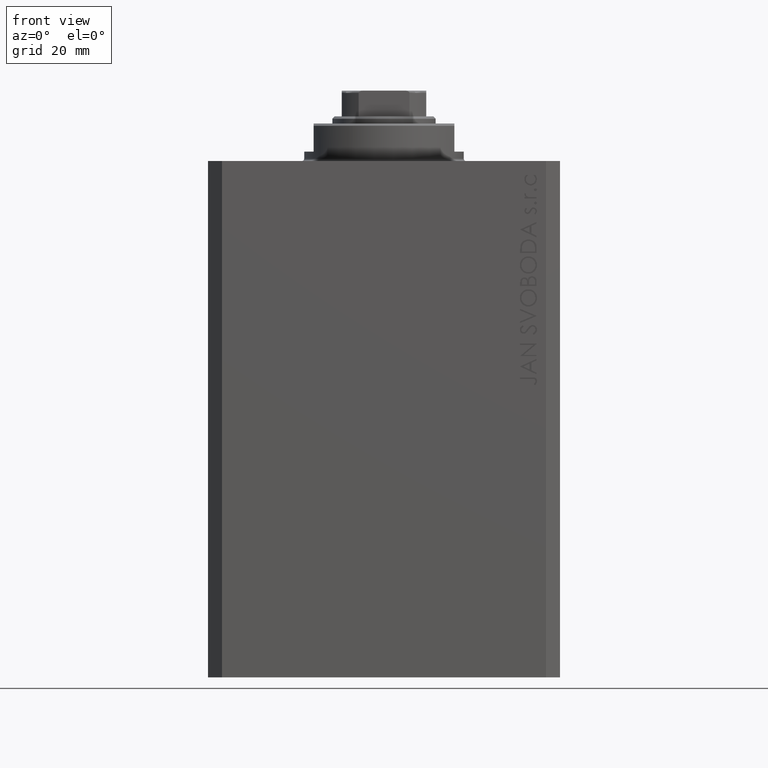
[diagram: clean part render]
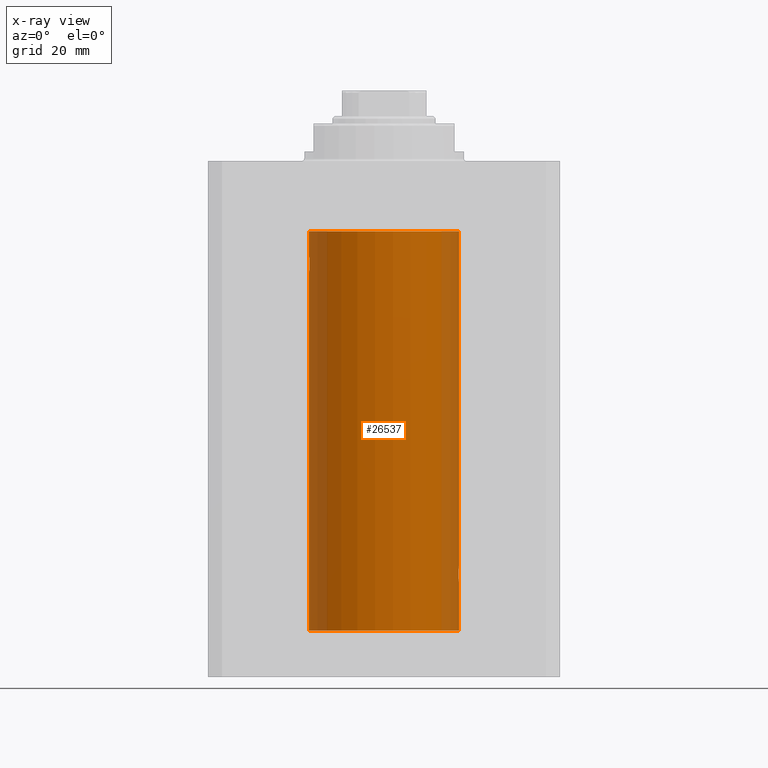
[diagram: x-ray — body ghosted, one internal face saturated and labeled with its STEP entity id]
A machine part, front view, then the same camera in x-ray: the body is ghosted and one INTERNAL B-rep face — a face not visible from any outside direction — is saturated and labeled: STEP entity #26537.
In plain terms, the highlighted cylindrical surface (partial cylindrical patch) has radius 16 mm, axis along (0, 0, 1).
Its self-contained STEP definition (entity closure, byte-faithful):
#596 = CARTESIAN_POINT ( 'NONE',  ( 0.000000000000000000, 0.000000000000000000, -15.00000000000000000 ) ) ;
#809 = ORIENTED_EDGE ( 'NONE', *, *, #43138, .T. ) ;
#1221 = CARTESIAN_POINT ( 'NONE',  ( 15.95378323135041043, -1.229270712110467345, -86.40096078818024239 ) ) ;
#1345 = DIRECTION ( 'NONE',  ( 1.000000000000000000, 0.000000000000000000, 0.000000000000000000 ) ) ;
#2760 = CARTESIAN_POINT ( 'NONE',  ( -15.87613558886575760, -1.987201773464425836, -21.73917179650635134 ) ) ;
#2916 = EDGE_CURVE ( 'NONE', #29771, #35908, #34539, .T. ) ;
#3220 = ORIENTED_EDGE ( 'NONE', *, *, #15721, .F. ) ;
#3379 = AXIS2_PLACEMENT_3D ( 'NONE', #596, #32054, #28238 ) ;
#4003 = VERTEX_POINT ( 'NONE', #36665 ) ;
#5042 = CARTESIAN_POINT ( 'NONE',  ( 15.92923429551377623, -1.506011695761385827, -86.67752618423779154 ) ) ;
#5076 = LINE ( 'NONE', #35872, #6106 ) ;
#5268 = CARTESIAN_POINT ( 'NONE',  ( 15.89879988731505911, -1.797417927657978476, -88.88681574633190507 ) ) ;
#5909 = CARTESIAN_POINT ( 'NONE',  ( -15.87449600834271379, -2.000094120337571280, -21.86919591423420783 ) ) ;
#6106 = VECTOR ( 'NONE', #30179, 1000.000000000000000 ) ;
#6119 = CARTESIAN_POINT ( 'NONE',  ( -15.88709570026284545, -1.898087287925293687, -21.35623329282659455 ) ) ;
#7003 = CARTESIAN_POINT ( 'NONE',  ( -16.00000000000000000, 8.139613661842072923E-16, -20.00000000000000000 ) ) ;
#7240 = VECTOR ( 'NONE', #20393, 1000.000000000000000 ) ;
#7503 = CARTESIAN_POINT ( 'NONE',  ( -16.00000000000000000, 1.959434878635765131E-15, -100.0999999999999943 ) ) ;
#7553 = VERTEX_POINT ( 'NONE', #23729 ) ;
#9236 = VERTEX_POINT ( 'NONE', #42878 ) ;
#9702 = CARTESIAN_POINT ( 'NONE',  ( -15.88239801746205515, -1.936513707523806360, -21.48335998918948775 ) ) ;
#9908 = AXIS2_PLACEMENT_3D ( 'NONE', #17741, #11449, #1345 ) ;
#9929 = CARTESIAN_POINT ( 'NONE',  ( -15.99321727742820620, -0.5244724041436311657, -23.94751141031268560 ) ) ;
#11449 = DIRECTION ( 'NONE',  ( -0.000000000000000000, -0.000000000000000000, 1.000000000000000000 ) ) ;
#11471 = ORIENTED_EDGE ( 'NONE', *, *, #11610, .T. ) ;
#11610 = EDGE_CURVE ( 'NONE', #9236, #42662, #23384, .T. ) ;
#11765 = CARTESIAN_POINT ( 'NONE',  ( 16.00000000000000000, -2.738688404655786685E-23, -86.00000000000000000 ) ) ;
#12390 = CARTESIAN_POINT ( 'NONE',  ( -16.00000000000000000, 1.959434851239607631E-15, -23.99999999999999645 ) ) ;
#12990 = CARTESIAN_POINT ( 'NONE',  ( 16.00000000000000000, 0.000000000000000000, -100.0999999999999943 ) ) ;
#13100 = CARTESIAN_POINT ( 'NONE',  ( 15.88715711325523472, -1.897577117346632258, -87.35470827059133114 ) ) ;
#13288 = CARTESIAN_POINT ( 'NONE',  ( -15.92928245046054769, -1.505501573616968347, -23.32304844713207359 ) ) ;
#14508 = CARTESIAN_POINT ( 'NONE',  ( -16.00000000000000000, 8.139613661842072923E-16, -20.00000000000000000 ) ) ;
#14793 = DIRECTION ( 'NONE',  ( -0.000000000000000000, -0.000000000000000000, 1.000000000000000000 ) ) ;
#15166 = CARTESIAN_POINT ( 'NONE',  ( 15.95367853504516020, -1.230571937713644592, -89.59797881284819709 ) ) ;
#15663 = ORIENTED_EDGE ( 'NONE', *, *, #23582, .T. ) ;
#15721 = EDGE_CURVE ( 'NONE', #4003, #26194, #41612, .T. ) ;
#16009 = CARTESIAN_POINT ( 'NONE',  ( -15.90580722143557502, -1.735114343256360270, -23.00320784791317408 ) ) ;
#16295 = ORIENTED_EDGE ( 'NONE', *, *, #2916, .T. ) ;
#16433 = ORIENTED_EDGE ( 'NONE', *, *, #36117, .F. ) ;
#17741 = CARTESIAN_POINT ( 'NONE',  ( 0.000000000000000000, 0.000000000000000000, -100.0999999999999943 ) ) ;
#17772 = CARTESIAN_POINT ( 'NONE',  ( -15.97001510549667458, -1.008257970366809309, -20.25321871145306218 ) ) ;
#17840 = LINE ( 'NONE', #7503, #19908 ) ;
#17864 = CARTESIAN_POINT ( 'NONE',  ( 15.87450786638774503, -1.999999999999695133, -88.00000000000000000 ) ) ;
#18162 = LINE ( 'NONE', #39070, #38527 ) ;
#18255 = EDGE_CURVE ( 'NONE', #26194, #42662, #44216, .T. ) ;
#18737 = CARTESIAN_POINT ( 'NONE',  ( 15.90575552528889247, -1.735587436575120934, -86.99760376191683520 ) ) ;
#18971 = CARTESIAN_POINT ( 'NONE',  ( 15.90570493127647289, -1.736048731325449790, -89.00159606390616318 ) ) ;
#19209 = CARTESIAN_POINT ( 'NONE',  ( 15.92916365170397874, -1.506747118993470913, -89.32161795328836718 ) ) ;
#19908 = VECTOR ( 'NONE', #38300, 1000.000000000000000 ) ;
#20262 = CARTESIAN_POINT ( 'NONE',  ( -16.00000000000000000, 1.959434851239607631E-15, -23.99999999999999645 ) ) ;
#20393 = DIRECTION ( 'NONE',  ( -0.000000000000000000, -0.000000000000000000, 1.000000000000000000 ) ) ;
#20932 = CARTESIAN_POINT ( 'NONE',  ( -15.92081325887754950, -1.591545514129665495, -20.78178127159715061 ) ) ;
#21151 = CARTESIAN_POINT ( 'NONE',  ( -15.99312147175147381, -0.5272875822566800430, -20.05325995304360376 ) ) ;
#21406 = ORIENTED_EDGE ( 'NONE', *, *, #41315, .T. ) ;
#21675 = CARTESIAN_POINT ( 'NONE',  ( 16.00000000000000355, -0.2612440807804993215, -86.00000000000004263 ) ) ;
#21891 = CARTESIAN_POINT ( 'NONE',  ( 15.92092149944864410, -1.590465714389863949, -86.78037678790906284 ) ) ;
#22381 = ORIENTED_EDGE ( 'NONE', *, *, #24977, .T. ) ;
#22759 = CIRCLE ( 'NONE', #3379, 16.00000000000000000 ) ;
#22804 = CARTESIAN_POINT ( 'NONE',  ( 0.000000000000000000, 0.000000000000000000, -100.0999999999999943 ) ) ;
#22880 = CARTESIAN_POINT ( 'NONE',  ( 16.00000000000000000, -2.738688404655786685E-23, -86.00000000000000000 ) ) ;
#22984 = CARTESIAN_POINT ( 'NONE',  ( -15.88720136683946826, -1.897207606501643218, -22.64636362870457376 ) ) ;
#23384 = B_SPLINE_CURVE_WITH_KNOTS ( 'NONE', 3,
 ( #17864, #28207, #41920, #24827, #38548, #5268, #18971, #25271, #19209, #15166, #38989, #43040, #39211, #32248 ),
 .UNSPECIFIED., .F., .F.,
 ( 4, 2, 2, 2, 2, 2, 4 ),
 ( 0.009389208671973559711, 0.009780128071984169405, 0.01017104747199477910, 0.01056196687200538879, 0.01095288627201599849, 0.01173472507203721961, 0.01251656387205843900 ),
 .UNSPECIFIED. ) ;
#23582 = EDGE_CURVE ( 'NONE', #35908, #32896, #18162, .T. ) ;
#23729 = CARTESIAN_POINT ( 'NONE',  ( 16.00000000000000000, 0.000000000000000000, -15.00000000000000000 ) ) ;
#24827 = CARTESIAN_POINT ( 'NONE',  ( 15.88243572217633570, -1.936205349148615529, -88.51778019366463468 ) ) ;
#24977 = EDGE_CURVE ( 'NONE', #35759, #9236, #44382, .T. ) ;
#25271 = CARTESIAN_POINT ( 'NONE',  ( 15.92086417679749744, -1.591036901625990430, -89.21887712688091199 ) ) ;
#25373 = FACE_OUTER_BOUND ( 'NONE', #30669, .T. ) ;
#25477 = CARTESIAN_POINT ( 'NONE',  ( 15.99321095263419501, -0.5247071560218703468, -86.05253611177603545 ) ) ;
#26194 = VERTEX_POINT ( 'NONE', #27027 ) ;
#26382 = CARTESIAN_POINT ( 'NONE',  ( 15.88244988927328727, -1.936089665216105260, -87.48176817359480140 ) ) ;
#26537 = ADVANCED_FACE ( 'NONE', ( #25373 ), #28544, .F. ) ;
#26575 = CARTESIAN_POINT ( 'NONE',  ( -16.00000000000000355, -0.2611263091397176828, -24.00000000000000711 ) ) ;
#26600 = CARTESIAN_POINT ( 'NONE',  ( 15.87616187040659810, -1.986993191151173788, -87.73757767630262094 ) ) ;
#27027 = CARTESIAN_POINT ( 'NONE',  ( 16.00000000000000000, 0.000000000000000000, -100.0999999999999943 ) ) ;
#27231 = CARTESIAN_POINT ( 'NONE',  ( -15.97016854943970543, -1.005876079953899715, -23.74816627006212144 ) ) ;
#28207 = CARTESIAN_POINT ( 'NONE',  ( 15.87450786638757982, -1.999999999999695133, -88.13215961561486722 ) ) ;
#28238 = DIRECTION ( 'NONE',  ( 1.000000000000000000, 0.000000000000000000, 0.000000000000000000 ) ) ;
#28544 = CYLINDRICAL_SURFACE ( 'NONE', #9908, 16.00000000000000000 ) ;
#29422 = AXIS2_PLACEMENT_3D ( 'NONE', #22804, #30415, #43253 ) ;
#29771 = VERTEX_POINT ( 'NONE', #12390 ) ;
#30179 = DIRECTION ( 'NONE',  ( -0.000000000000000000, -0.000000000000000000, 1.000000000000000000 ) ) ;
#30415 = DIRECTION ( 'NONE',  ( 0.000000000000000000, 0.000000000000000000, 1.000000000000000000 ) ) ;
#30598 = ORIENTED_EDGE ( 'NONE', *, *, #18255, .F. ) ;
#30669 = EDGE_LOOP ( 'NONE', ( #3220, #809, #16295, #15663, #21406, #16433, #22381, #11471, #30598 ) ) ;
#32054 = DIRECTION ( 'NONE',  ( 0.000000000000000000, 0.000000000000000000, 1.000000000000000000 ) ) ;
#32248 = CARTESIAN_POINT ( 'NONE',  ( 16.00000000000000000, 3.524002214059393877E-15, -90.00000000000000000 ) ) ;
#32446 = CARTESIAN_POINT ( 'NONE',  ( 15.89884071244566854, -1.797059837015411610, -87.11243238313522852 ) ) ;
#32896 = VERTEX_POINT ( 'NONE', #44496 ) ;
#33102 = CARTESIAN_POINT ( 'NONE',  ( -15.92097237843274904, -1.589957129871026664, -23.22028033478411047 ) ) ;
#33969 = CARTESIAN_POINT ( 'NONE',  ( -15.89874935709249826, -1.797863738508693299, -21.11407850031504196 ) ) ;
#34429 = CARTESIAN_POINT ( 'NONE',  ( -15.95364199493483426, -1.231048876942798298, -20.40236864042801912 ) ) ;
#34539 = B_SPLINE_CURVE_WITH_KNOTS ( 'NONE', 3,
 ( #20262, #26575, #9929, #27231, #40938, #13288, #33102, #16009, #40071, #22984, #40718, #37352, #40497, #5909, #2760, #9702, #6119, #33969, #41385, #20932, #34639, #34429, #17772, #21151, #35092, #7003 ),
 .UNSPECIFIED., .F., .F.,
 ( 4, 2, 2, 2, 2, 2, 2, 2, 2, 2, 2, 2, 4 ),
 ( 0.006259031236593881609, 0.007041222816026950632, 0.007823414395460019655, 0.008214510185176554166, 0.008605605974893088678, 0.008996701764609623189, 0.009387797554326157701, 0.009778893344042692212, 0.01016998913375922672, 0.01056108492347576124, 0.01095218071319229575, 0.01173437229262535783, 0.01251656387205841645 ),
 .UNSPECIFIED. ) ;
#34639 = CARTESIAN_POINT ( 'NONE',  ( -15.92911555180481820, -1.507256214862781496, -20.67895665196595445 ) ) ;
#35092 = CARTESIAN_POINT ( 'NONE',  ( -16.00000000000000711, -0.2645044045393378229, -20.00000000000000355 ) ) ;
#35759 = VERTEX_POINT ( 'NONE', #22880 ) ;
#35837 = CARTESIAN_POINT ( 'NONE',  ( 15.97014368282246366, -1.006292663714016600, -86.25205598760368275 ) ) ;
#35872 = CARTESIAN_POINT ( 'NONE',  ( 16.00000000000000000, 0.000000000000000000, -100.0999999999999943 ) ) ;
#35908 = VERTEX_POINT ( 'NONE', #14508 ) ;
#36117 = EDGE_CURVE ( 'NONE', #35759, #7553, #5076, .T. ) ;
#36514 = CARTESIAN_POINT ( 'NONE',  ( 15.87450786638758338, -1.999999999999695133, -87.86772111890111603 ) ) ;
#36665 = CARTESIAN_POINT ( 'NONE',  ( -16.00000000000000000, 1.959434878635765131E-15, -100.0999999999999943 ) ) ;
#37352 = CARTESIAN_POINT ( 'NONE',  ( -15.87618369521984185, -1.986819684797414887, -22.26370462878176326 ) ) ;
#38300 = DIRECTION ( 'NONE',  ( -0.000000000000000000, -0.000000000000000000, 1.000000000000000000 ) ) ;
#38527 = VECTOR ( 'NONE', #14793, 1000.000000000000000 ) ;
#38548 = CARTESIAN_POINT ( 'NONE',  ( 15.88713982474484254, -1.897718960373744324, -88.64483805877635803 ) ) ;
#38989 = CARTESIAN_POINT ( 'NONE',  ( 15.97003999263321283, -1.007841982684946291, -89.74700387082582154 ) ) ;
#39070 = CARTESIAN_POINT ( 'NONE',  ( -16.00000000000000000, 1.959434878635765131E-15, -100.0999999999999943 ) ) ;
#39211 = CARTESIAN_POINT ( 'NONE',  ( 16.00000000000000711, -0.2643851093299312560, -89.99999999999998579 ) ) ;
#39796 = CARTESIAN_POINT ( 'NONE',  ( 16.00000000000000000, 3.524002214059393877E-15, -90.00000000000000000 ) ) ;
#39864 = CARTESIAN_POINT ( 'NONE',  ( 15.87450786638774503, -1.999999999999695133, -88.00000000000000000 ) ) ;
#40071 = CARTESIAN_POINT ( 'NONE',  ( -15.89889131367402619, -1.796613193944150755, -22.88846140829279463 ) ) ;
#40497 = CARTESIAN_POINT ( 'NONE',  ( -15.87451985347842687, -1.999904855391102299, -22.13366663175617788 ) ) ;
#40718 = CARTESIAN_POINT ( 'NONE',  ( -15.88248768234623576, -1.935780515549986536, -22.51937114547926910 ) ) ;
#40938 = CARTESIAN_POINT ( 'NONE',  ( -15.95381972293796835, -1.228793614424116054, -23.59938581325380014 ) ) ;
#41315 = EDGE_CURVE ( 'NONE', #32896, #7553, #22759, .T. ) ;
#41385 = CARTESIAN_POINT ( 'NONE',  ( -15.90565326803670665, -1.736521253711138968, -20.99921634246594948 ) ) ;
#41612 = CIRCLE ( 'NONE', #29422, 16.00000000000000000 ) ;
#41920 = CARTESIAN_POINT ( 'NONE',  ( 15.87615728668762394, -1.987029298095570828, -88.26211076195546923 ) ) ;
#42662 = VERTEX_POINT ( 'NONE', #39796 ) ;
#42878 = CARTESIAN_POINT ( 'NONE',  ( 15.87450786638774503, -1.999999999999695133, -88.00000000000000000 ) ) ;
#43040 = CARTESIAN_POINT ( 'NONE',  ( 15.99312784302578372, -0.5270527724999303221, -89.94678796013921840 ) ) ;
#43138 = EDGE_CURVE ( 'NONE', #4003, #29771, #17840, .T. ) ;
#43253 = DIRECTION ( 'NONE',  ( 1.000000000000000000, 0.000000000000000000, 0.000000000000000000 ) ) ;
#44216 = LINE ( 'NONE', #12990, #7240 ) ;
#44382 = B_SPLINE_CURVE_WITH_KNOTS ( 'NONE', 3,
 ( #11765, #21675, #25477, #35837, #1221, #5042, #21891, #18737, #32446, #13100, #26382, #26600, #36514, #39864 ),
 .UNSPECIFIED., .F., .F.,
 ( 4, 2, 2, 2, 2, 2, 4 ),
 ( 0.006259031236594497435, 0.007041575595439277316, 0.007824119954284057196, 0.008215392133706433259, 0.008606664313128807586, 0.008997936492551183649, 0.009389208671973559711 ),
 .UNSPECIFIED. ) ;
#44496 = CARTESIAN_POINT ( 'NONE',  ( -16.00000000000000000, 1.959434878635765131E-15, -15.00000000000000000 ) ) ;